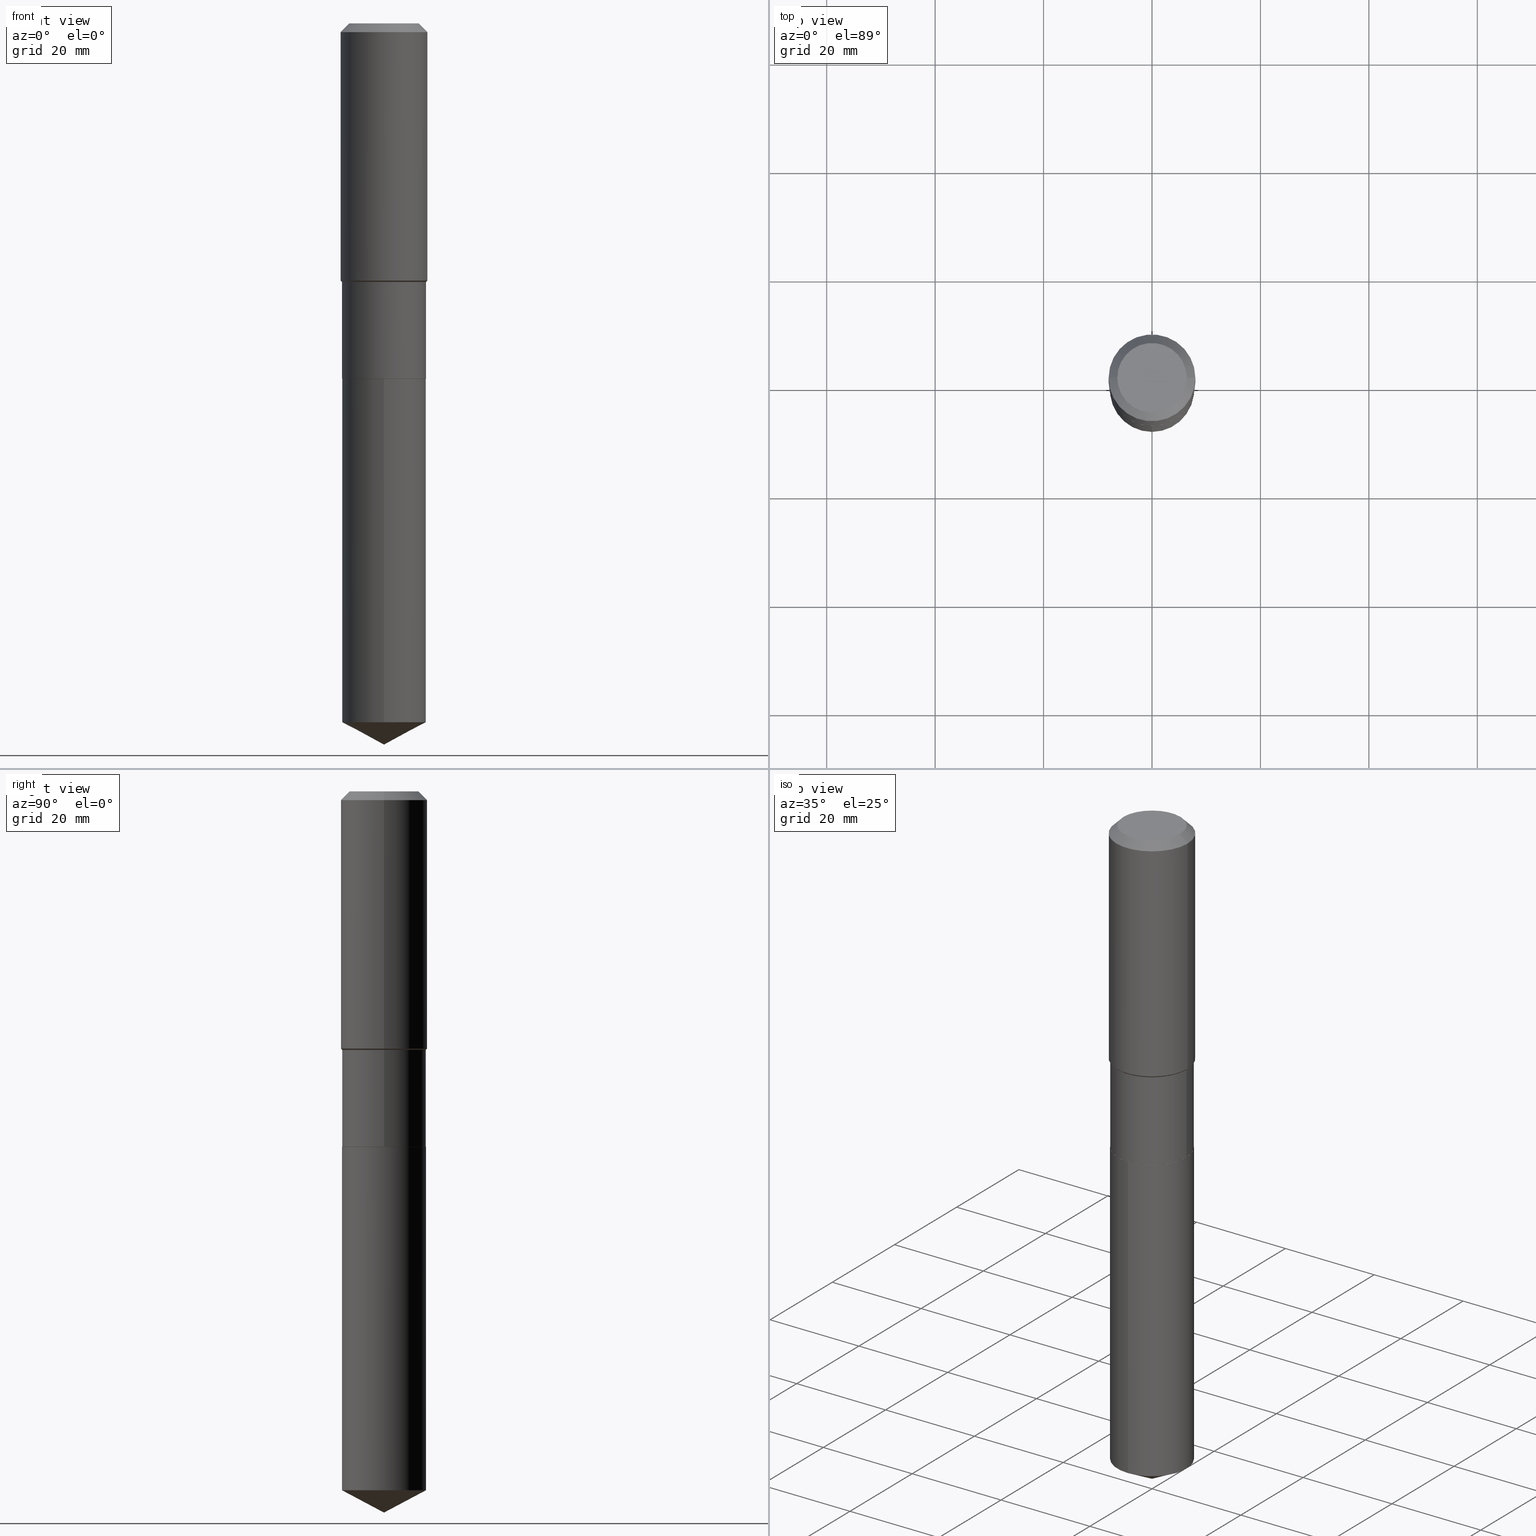
[diagram: canonical four-view strip — front | top / right | iso, engineering-drawing reading convention]
A machine part, canonical four-view strip (front | top / right | iso — engineering-drawing reading convention). The complete STEP part file that produces these views, byte-faithful:
ISO-10303-21;
HEADER;
FILE_DESCRIPTION (( 'STEP AP203' ),
    '1' );
FILE_NAME ('65260.STEP',
    '2024-04-24T22:07:33',
    ( '' ),
    ( '' ),
    'SwSTEP 2.0',
    'SolidWorks 2023',
    '' );
FILE_SCHEMA (( 'CONFIG_CONTROL_DESIGN' ));
ENDSEC;

DATA;
#1 = PLANE ( 'NONE',  #348 ) ;
#2 = ORIENTED_EDGE ( 'NONE', *, *, #379, .F. ) ;
#3 = DIRECTION ( 'NONE',  ( 1.000000000000000000, -6.982962677686269866E-15, 0.000000000000000000 ) ) ;
#4 = CC_DESIGN_DATE_AND_TIME_ASSIGNMENT ( #440, #127, ( #41 ) ) ;
#5 = ORIENTED_EDGE ( 'NONE', *, *, #96, .F. ) ;
#6 = CARTESIAN_POINT ( 'NONE',  ( 6.306130410509611898E-29, -9.003482928474819860E-15, -2.578699999999999992 ) ) ;
#7 = ORIENTED_EDGE ( 'NONE', *, *, #178, .T. ) ;
#8 = DIRECTION ( 'NONE',  ( 1.000000000000000000, -6.982962677686269866E-15, 0.000000000000000000 ) ) ;
#9 = ADVANCED_FACE ( 'NONE', ( #324 ), #347, .T. ) ;
#10 = DIRECTION ( 'NONE',  ( -6.982962677686265133E-15, -1.000000000000000000, 3.581577179500837048E-15 ) ) ;
#11 = CONICAL_SURFACE ( 'NONE', #53, 0.3149500000000000077, 0.7853981633974452814 ) ;
#12 = CARTESIAN_POINT ( 'NONE',  ( 6.304907676106519097E-29, -9.001737187805397567E-15, -2.578199999999999825 ) ) ;
#13 = FACE_OUTER_BOUND ( 'NONE', #62, .T. ) ;
#14 = ORIENTED_EDGE ( 'NONE', *, *, #262, .T. ) ;
#15 = DIRECTION ( 'NONE',  ( 1.000000000000000000, -6.982962677686266711E-15, 0.000000000000000000 ) ) ;
#16 = ADVANCED_BREP_SHAPE_REPRESENTATION ( '65260', ( #431, #260, #411 ), #55 ) ;
#17 = APPROVAL ( #416, 'UNSPECIFIED' ) ;
#18 = DATE_AND_TIME ( #170, #91 ) ;
#19 = CIRCLE ( 'NONE', #136, 0.3149500000000000077 ) ;
#20 = ORIENTED_EDGE ( 'NONE', *, *, #228, .F. ) ;
#21 = PERSON_AND_ORGANIZATION ( #405, #266 ) ;
#22 = ORIENTED_EDGE ( 'NONE', *, *, #408, .F. ) ;
#23 = COORDINATED_UNIVERSAL_TIME_OFFSET ( 5, 0, .BEHIND. ) ;
#24 = DIRECTION ( 'NONE',  ( -2.445468806185136597E-29, 3.491481338843145583E-15, 1.000000000000000000 ) ) ;
#25 = APPROVAL_DATE_TIME ( #18, #274 ) ;
#26 = DIRECTION ( 'NONE',  ( -2.445468806185136597E-29, 3.491481338843145583E-15, 1.000000000000000000 ) ) ;
#27 = AXIS2_PLACEMENT_3D ( 'NONE', #120, #432, #229 ) ;
#28 = CARTESIAN_POINT ( 'NONE',  ( -0.3149500000000000077, 1.979355685803558833E-15, -0.06299000000000036514 ) ) ;
#29 = DIRECTION ( 'NONE',  ( 0.7071067811860163310, -2.468850131076692830E-15, 0.7071067811870787034 ) ) ;
#30 = ORIENTED_EDGE ( 'NONE', *, *, #319, .T. ) ;
#31 = CARTESIAN_POINT ( 'NONE',  ( -0.3149500000000001743, 2.237854346276436774E-15, -1.549218606675783237E-29 ) ) ;
#32 = AXIS2_PLACEMENT_3D ( 'NONE', #244, #361, #292 ) ;
#33 = DIRECTION ( 'NONE',  ( -2.445468806185136597E-29, 3.491481338843145583E-15, 1.000000000000000000 ) ) ;
#34 = EDGE_LOOP ( 'NONE', ( #174, #177 ) ) ;
#35 = CARTESIAN_POINT ( 'NONE',  ( 1.280398962519397944E-28, -1.828348960715673397E-14, -5.236200000000000188 ) ) ;
#36 = ORIENTED_EDGE ( 'NONE', *, *, #191, .T. ) ;
#37 = CARTESIAN_POINT ( 'NONE',  ( -0.3050999999999999268, -4.385644586204520363E-15, -1.877000000000000224 ) ) ;
#38 = VERTEX_POINT ( 'NONE', #367 ) ;
#39 = AXIS2_PLACEMENT_3D ( 'NONE', #314, #357, #155 ) ;
#40 = DIRECTION ( 'NONE',  ( -6.982962677686265133E-15, -1.000000000000000000, 3.581577179500837048E-15 ) ) ;
#41 = PRODUCT_DEFINITION ( 'UNKNOWN', '', #473, #134 ) ;
#42 = DIRECTION ( 'NONE',  ( 1.000000000000000000, -6.982962677686266711E-15, 0.000000000000000000 ) ) ;
#43 = DIRECTION ( 'NONE',  ( -2.445282767120044128E-29, 3.491747757373043881E-15, 1.000000000000000000 ) ) ;
#44 = CIRCLE ( 'NONE', #330, 0.3045999999999999819 ) ;
#45 = LINE ( 'NONE', #349, #337 ) ;
#46 = VERTEX_POINT ( 'NONE', #409 ) ;
#47 = COORDINATED_UNIVERSAL_TIME_OFFSET ( 5, 0, .BEHIND. ) ;
#48 = ADVANCED_FACE ( 'NONE', ( #402 ), #151, .T. ) ;
#49 = EDGE_LOOP ( 'NONE', ( #395, #446, #278, #251 ) ) ;
#50 = CALENDAR_DATE ( 2024, 24, 4 ) ;
#51 = ORIENTED_EDGE ( 'NONE', *, *, #105, .F. ) ;
#52 = CIRCLE ( 'NONE', #420, 0.3050999999999999268 ) ;
#53 = AXIS2_PLACEMENT_3D ( 'NONE', #354, #275, #193 ) ;
#54 = ORIENTED_EDGE ( 'NONE', *, *, #385, .F. ) ;
#55 =( GEOMETRIC_REPRESENTATION_CONTEXT ( 3 ) GLOBAL_UNCERTAINTY_ASSIGNED_CONTEXT ( ( #99 ) ) GLOBAL_UNIT_ASSIGNED_CONTEXT ( ( #208, #401, #240 ) ) REPRESENTATION_CONTEXT ( 'NONE', 'WORKASPACE' ) );
#56 = EDGE_CURVE ( 'NONE', #358, #383, #476, .T. ) ;
#57 = DIRECTION ( 'NONE',  ( 1.000000000000000000, 0.000000000000000000, 0.000000000000000000 ) ) ;
#58 = DIRECTION ( 'NONE',  ( -6.982962677686265922E-15, -1.000000000000000000, 3.541896320645553375E-15 ) ) ;
#59 = CARTESIAN_POINT ( 'NONE',  ( 2.167865886804128256E-15, 0.3050999999999909895, -2.578700000000000880 ) ) ;
#60 = CARTESIAN_POINT ( 'NONE',  ( 1.540400801016026329E-30, -2.199284095337310135E-16, -0.06299000000000036514 ) ) ;
#61 = AXIS2_PLACEMENT_3D ( 'NONE', #60, #214, #380 ) ;
#62 = EDGE_LOOP ( 'NONE', ( #83, #7, #14, #270 ) ) ;
#63 = DIRECTION ( 'NONE',  ( -2.445468806185136597E-29, 3.491481338843145583E-15, 1.000000000000000000 ) ) ;
#64 = CARTESIAN_POINT ( 'NONE',  ( -0.3050999999999999268, 2.167865886804065147E-15, -1.500767096036771338E-29 ) ) ;
#65 = DIRECTION ( 'NONE',  ( -6.982962677686265133E-15, -1.000000000000000000, 3.581577179500837836E-15 ) ) ;
#66 = VECTOR ( 'NONE', #101, 39.37007874015748143 ) ;
#67 = VERTEX_POINT ( 'NONE', #286 ) ;
#68 = CALENDAR_DATE ( 2024, 24, 4 ) ;
#69 = DIRECTION ( 'NONE',  ( -2.445282767120044128E-29, 3.491747757373043881E-15, 1.000000000000000000 ) ) ;
#70 = EDGE_LOOP ( 'NONE', ( #73, #376, #302, #441 ) ) ;
#71 = CARTESIAN_POINT ( 'NONE',  ( 6.306130410509611898E-29, -9.003482928474819860E-15, -2.578699999999999992 ) ) ;
#72 = ADVANCED_FACE ( 'NONE', ( #407 ), #371, .T. ) ;
#73 = ORIENTED_EDGE ( 'NONE', *, *, #447, .T. ) ;
#74 = DIRECTION ( 'NONE',  ( -0.7071067811860163310, 7.493145998868434073E-15, 0.7071067811870787034 ) ) ;
#75 = APPROVAL ( #242, 'UNSPECIFIED' ) ;
#76 = AXIS2_PLACEMENT_3D ( 'NONE', #455, #97, #375 ) ;
#77 = DIRECTION ( 'NONE',  ( 2.445468806185136597E-29, -3.491481338843145583E-15, -1.000000000000000000 ) ) ;
#78 = CARTESIAN_POINT ( 'NONE',  ( 0.2519600000000000173, -2.054606664725195058E-15, 3.855188123729206640E-18 ) ) ;
#79 = CARTESIAN_POINT ( 'NONE',  ( -0.3149500000000002298, -4.281265035544543144E-15, -1.867150000000000087 ) ) ;
#80 = ORIENTED_EDGE ( 'NONE', *, *, #228, .T. ) ;
#81 = CONICAL_SURFACE ( 'NONE', #76, 0.3050999999999999268, 0.7853981633974552734 ) ;
#82 = CC_DESIGN_PERSON_AND_ORGANIZATION_ASSIGNMENT ( #21, #366, ( #163 ) ) ;
#83 = ORIENTED_EDGE ( 'NONE', *, *, #119, .F. ) ;
#84 = APPROVAL_STATUS ( 'not_yet_approved' ) ;
#85 = DIRECTION ( 'NONE',  ( 1.000000000000000000, -6.982962677686266711E-15, 4.876115136096691995E-29 ) ) ;
#86 = VERTEX_POINT ( 'NONE', #327 ) ;
#87 = EDGE_CURVE ( 'NONE', #110, #358, #288, .T. ) ;
#88 = VECTOR ( 'NONE', #200, 39.37007874015748143 ) ;
#89 = CIRCLE ( 'NONE', #378, 0.3050999999999999268 ) ;
#90 = DIRECTION ( 'NONE',  ( -2.445468806185136597E-29, 3.491481338843145583E-15, 1.000000000000000000 ) ) ;
#91 = LOCAL_TIME ( 18, 7, 33.00000000000000000, #210 ) ;
#92 = DIRECTION ( 'NONE',  ( -2.445468806185136597E-29, 3.491481338843145583E-15, 1.000000000000000000 ) ) ;
#93 = SECURITY_CLASSIFICATION_LEVEL ( 'unclassified' ) ;
#94 = CARTESIAN_POINT ( 'NONE',  ( 0.3149500000000000077, -2.380642253931875190E-15, -0.06299000000000036514 ) ) ;
#95 = DIRECTION ( 'NONE',  ( -2.445468806185136597E-29, 3.491481338843145583E-15, 1.000000000000000000 ) ) ;
#96 = EDGE_CURVE ( 'NONE', #295, #202, #108, .T. ) ;
#97 = DIRECTION ( 'NONE',  ( -2.445468806185136597E-29, 3.491481338843145583E-15, 1.000000000000000000 ) ) ;
#98 = CONICAL_SURFACE ( 'NONE', #190, 0.3045999999999999819, 0.7853981633966971021 ) ;
#99 = UNCERTAINTY_MEASURE_WITH_UNIT (LENGTH_MEASURE( 1.000000000000000082E-05 ), #208, 'distance_accuracy_value', 'NONE');
#100 = CC_DESIGN_SECURITY_CLASSIFICATION ( #364, ( #473 ) ) ;
#101 = DIRECTION ( 'NONE',  ( -2.445282767120044128E-29, 3.491747757373043881E-15, 1.000000000000000000 ) ) ;
#102 = EDGE_LOOP ( 'NONE', ( #186, #181, #305, #2 ) ) ;
#103 = APPROVAL_ROLE ( '' ) ;
#104 = CARTESIAN_POINT ( 'NONE',  ( -0.3050999999999999268, -5.609757943602925997E-15, -1.877000000000000224 ) ) ;
#105 = EDGE_CURVE ( 'NONE', #199, #67, #166, .T. ) ;
#106 = ORIENTED_EDGE ( 'NONE', *, *, #406, .T. ) ;
#107 = DIRECTION ( 'NONE',  ( -2.445468806185136597E-29, 3.491481338843145583E-15, 1.000000000000000000 ) ) ;
#108 = CIRCLE ( 'NONE', #196, 0.3050999999999999268 ) ;
#109 = AXIS2_PLACEMENT_3D ( 'NONE', #489, #142, #297 ) ;
#110 = VERTEX_POINT ( 'NONE', #437 ) ;
#111 = LINE ( 'NONE', #226, #183 ) ;
#112 = EDGE_LOOP ( 'NONE', ( #410, #106, #346, #22 ) ) ;
#113 = ADVANCED_FACE ( 'NONE', ( #478 ), #306, .T. ) ;
#114 = CARTESIAN_POINT ( 'NONE',  ( 0.3149500000000001743, -2.199284095337290660E-15, 1.535751875536930690E-29 ) ) ;
#115 = FACE_OUTER_BOUND ( 'NONE', #102, .T. ) ;
#116 = VECTOR ( 'NONE', #467, 39.37007874015748143 ) ;
#117 = APPROVAL_PERSON_ORGANIZATION ( #282, #75, #328 ) ;
#118 = DIRECTION ( 'NONE',  ( 1.000000000000000000, -6.982962677686269077E-15, 0.000000000000000000 ) ) ;
#119 = EDGE_CURVE ( 'NONE', #67, #277, #133, .T. ) ;
#120 = CARTESIAN_POINT ( 'NONE',  ( 0.000000000000000000, 0.000000000000000000, 0.000000000000000000 ) ) ;
#121 = VERTEX_POINT ( 'NONE', #248 ) ;
#122 = CC_DESIGN_DATE_AND_TIME_ASSIGNMENT ( #139, #338, ( #364 ) ) ;
#123 = CYLINDRICAL_SURFACE ( 'NONE', #39, 0.3149500000000001743 ) ;
#124 = ORIENTED_EDGE ( 'NONE', *, *, #243, .F. ) ;
#125 = CIRCLE ( 'NONE', #247, 0.3149500000000002298 ) ;
#126 = CC_DESIGN_APPROVAL ( #17, ( #364 ) ) ;
#127 = DATE_TIME_ROLE ( 'creation_date' ) ;
#128 = DIRECTION ( 'NONE',  ( -2.445282767120044128E-29, 3.491747757373043881E-15, 1.000000000000000000 ) ) ;
#129 = CYLINDRICAL_SURFACE ( 'NONE', #350, 0.3050999999999999268 ) ;
#130 = EDGE_CURVE ( 'NONE', #263, #86, #213, .T. ) ;
#131 = DIRECTION ( 'NONE',  ( -2.438088387897960049E-29, 3.491481338843145188E-15, 1.000000000000000000 ) ) ;
#132 = DIRECTION ( 'NONE',  ( 0.000000000000000000, 0.000000000000000000, 1.000000000000000000 ) ) ;
#133 = LINE ( 'NONE', #59, #456 ) ;
#134 = DESIGN_CONTEXT ( 'detailed design', #474, 'design' ) ;
#135 = AXIS2_PLACEMENT_3D ( 'NONE', #140, #95, #480 ) ;
#136 = AXIS2_PLACEMENT_3D ( 'NONE', #377, #63, #412 ) ;
#137 = PERSON_AND_ORGANIZATION_ROLE ( 'creator' ) ;
#138 = CARTESIAN_POINT ( 'NONE',  ( 4.590144949209502325E-29, -6.553510473008584721E-15, -1.877000000000000224 ) ) ;
#139 = DATE_AND_TIME ( #68, #233 ) ;
#140 = CARTESIAN_POINT ( 'NONE',  ( 4.590144949209502325E-29, -6.553510473008584721E-15, -1.877000000000000224 ) ) ;
#141 = ADVANCED_FACE ( 'NONE', ( #250 ), #283, .F. ) ;
#142 = DIRECTION ( 'NONE',  ( 2.445282767120043848E-29, -3.491747757373043881E-15, -1.000000000000000000 ) ) ;
#143 = LINE ( 'NONE', #28, #289 ) ;
#144 = VECTOR ( 'NONE', #485, 39.37007874015748143 ) ;
#145 = EDGE_CURVE ( 'NONE', #358, #110, #307, .T. ) ;
#146 = FACE_OUTER_BOUND ( 'NONE', #112, .T. ) ;
#147 = EDGE_LOOP ( 'NONE', ( #484, #318, #188 ) ) ;
#148 = CARTESIAN_POINT ( 'NONE',  ( 2.167865886804189787E-15, 0.3050999999999909895, -2.578700000000000880 ) ) ;
#149 = ORIENTED_EDGE ( 'NONE', *, *, #461, .F. ) ;
#150 = CARTESIAN_POINT ( 'NONE',  ( 4.566057081468578396E-29, -6.519119381820979918E-15, -1.867150000000000087 ) ) ;
#151 = CONICAL_SURFACE ( 'NONE', #482, 74.04434902938369589, 1.082104136236487379 ) ;
#152 = AXIS2_PLACEMENT_3D ( 'NONE', #246, #335, #256 ) ;
#153 = LOCAL_TIME ( 18, 7, 33.00000000000000000, #23 ) ;
#154 = ORIENTED_EDGE ( 'NONE', *, *, #262, .F. ) ;
#155 = DIRECTION ( 'NONE',  ( 1.000000000000000000, -6.982962677686265922E-15, 4.876176775795935232E-29 ) ) ;
#156 = ORIENTED_EDGE ( 'NONE', *, *, #130, .T. ) ;
#157 = EDGE_CURVE ( 'NONE', #294, #340, #125, .T. ) ;
#158 = DIRECTION ( 'NONE',  ( -2.445282767120044128E-29, 3.491747757373043881E-15, 1.000000000000000000 ) ) ;
#159 = CARTESIAN_POINT ( 'NONE',  ( 6.306130410509611898E-29, -9.003482928474819860E-15, -2.578699999999999992 ) ) ;
#160 = CLOSED_SHELL ( 'NONE', ( #215, #356, #365, #203, #466, #72, #9, #326, #450, #296, #141, #316 ) ) ;
#161 = CYLINDRICAL_SURFACE ( 'NONE', #27, 0.3149500000000001743 ) ;
#162 = EDGE_CURVE ( 'NONE', #383, #121, #19, .T. ) ;
#163 = PRODUCT ( '65260', '65260', '', ( #206 ) ) ;
#164 = FACE_OUTER_BOUND ( 'NONE', #422, .T. ) ;
#165 = ORIENTED_EDGE ( 'NONE', *, *, #408, .T. ) ;
#166 = LINE ( 'NONE', #321, #392 ) ;
#167 = AXIS2_PLACEMENT_3D ( 'NONE', #150, #261, #180 ) ;
#168 = APPLICATION_PROTOCOL_DEFINITION ( 'international standard', 'config_control_design', 1994, #224 ) ;
#169 = CARTESIAN_POINT ( 'NONE',  ( 3.076170230057308953E-29, -1.362896974479920444E-14, -2.578700000000000436 ) ) ;
#170 = CALENDAR_DATE ( 2024, 24, 4 ) ;
#171 = DIRECTION ( 'NONE',  ( 1.000000000000000000, -6.982962677686265133E-15, 4.876176775795935793E-29 ) ) ;
#172 = PRODUCT_DEFINITION_SHAPE ( 'NONE', 'NONE',  #41 ) ;
#173 = APPROVAL_DATE_TIME ( #201, #75 ) ;
#174 = ORIENTED_EDGE ( 'NONE', *, *, #385, .T. ) ;
#175 = AXIS2_PLACEMENT_3D ( 'NONE', #469, #317, #423 ) ;
#176 = CARTESIAN_POINT ( 'NONE',  ( 6.306130410509613019E-29, -9.003482928474821437E-15, -2.578700000000000436 ) ) ;
#177 = ORIENTED_EDGE ( 'NONE', *, *, #341, .T. ) ;
#178 = EDGE_CURVE ( 'NONE', #67, #468, #52, .T. ) ;
#179 = LINE ( 'NONE', #451, #66 ) ;
#180 = DIRECTION ( 'NONE',  ( 1.000000000000000000, -6.982962677686268288E-15, 0.000000000000000000 ) ) ;
#181 = ORIENTED_EDGE ( 'NONE', *, *, #268, .T. ) ;
#182 = EDGE_CURVE ( 'NONE', #263, #295, #258, .T. ) ;
#183 = VECTOR ( 'NONE', #29, 39.37007874015748143 ) ;
#184 = FACE_OUTER_BOUND ( 'NONE', #34, .T. ) ;
#185 = FACE_OUTER_BOUND ( 'NONE', #386, .T. ) ;
#186 = ORIENTED_EDGE ( 'NONE', *, *, #157, .T. ) ;
#187 = DIRECTION ( 'NONE',  ( -2.445468806185136597E-29, 3.491481338843145583E-15, 1.000000000000000000 ) ) ;
#188 = ORIENTED_EDGE ( 'NONE', *, *, #319, .F. ) ;
#189 = FACE_OUTER_BOUND ( 'NONE', #309, .T. ) ;
#190 = AXIS2_PLACEMENT_3D ( 'NONE', #355, #428, #8 ) ;
#191 = EDGE_CURVE ( 'NONE', #199, #468, #223, .T. ) ;
#192 = ORIENTED_EDGE ( 'NONE', *, *, #415, .T. ) ;
#193 = DIRECTION ( 'NONE',  ( -1.000000000000000000, 6.982962677686266711E-15, 0.000000000000000000 ) ) ;
#194 = DIRECTION ( 'NONE',  ( -0.7071067811865524577, 7.493145998870371515E-15, 0.7071067811865425767 ) ) ;
#195 = DIRECTION ( 'NONE',  ( -2.445282767120044128E-29, 3.491747757373043881E-15, 1.000000000000000000 ) ) ;
#196 = AXIS2_PLACEMENT_3D ( 'NONE', #138, #24, #15 ) ;
#197 = VECTOR ( 'NONE', #417, 39.37007874015748143 ) ;
#198 = DIRECTION ( 'NONE',  ( -1.000000000000000000, 6.982962677686266711E-15, 0.000000000000000000 ) ) ;
#199 = VERTEX_POINT ( 'NONE', #486 ) ;
#200 = DIRECTION ( 'NONE',  ( 0.7071067811865453523, -7.319954787623248157E-15, -0.7071067811865496822 ) ) ;
#201 = DATE_AND_TIME ( #50, #153 ) ;
#202 = VERTEX_POINT ( 'NONE', #373 ) ;
#203 = ADVANCED_FACE ( 'NONE', ( #146 ), #81, .T. ) ;
#204 = AXIS2_PLACEMENT_3D ( 'NONE', #404, #369, #284 ) ;
#205 = APPROVAL_PERSON_ORGANIZATION ( #399, #274, #368 ) ;
#206 = MECHANICAL_CONTEXT ( 'NONE', #224, 'mechanical' ) ;
#207 = ORIENTED_EDGE ( 'NONE', *, *, #255, .F. ) ;
#208 =( CONVERSION_BASED_UNIT ( 'INCH', #434 ) LENGTH_UNIT ( ) NAMED_UNIT ( #245 ) );
#209 = CARTESIAN_POINT ( 'NONE',  ( 0.000000000000000000, 0.000000000000000000, 0.000000000000000000 ) ) ;
#210 = COORDINATED_UNIVERSAL_TIME_OFFSET ( 5, 0, .BEHIND. ) ;
#211 = CARTESIAN_POINT ( 'NONE',  ( -8.346650571933516159E-28, 1.191875815548513333E-13, 34.13387874015747769 ) ) ;
#212 = AXIS2_PLACEMENT_3D ( 'NONE', #359, #26, #85 ) ;
#213 = CIRCLE ( 'NONE', #204, 0.3050999999999999268 ) ;
#214 = DIRECTION ( 'NONE',  ( -2.445468806185136597E-29, 3.491481338843145583E-15, 1.000000000000000000 ) ) ;
#215 = ADVANCED_FACE ( 'NONE', ( #217 ), #363, .T. ) ;
#216 = DATE_AND_TIME ( #259, #396 ) ;
#217 = FACE_OUTER_BOUND ( 'NONE', #374, .T. ) ;
#218 = EDGE_CURVE ( 'NONE', #46, #86, #111, .T. ) ;
#219 = APPROVAL_DATE_TIME ( #216, #17 ) ;
#220 = DIRECTION ( 'NONE',  ( -2.445468806185136597E-29, 3.491481338843145583E-15, 1.000000000000000000 ) ) ;
#221 = ORIENTED_EDGE ( 'NONE', *, *, #268, .F. ) ;
#222 = CIRCLE ( 'NONE', #280, 0.3045999999999999819 ) ;
#223 = LINE ( 'NONE', #35, #313 ) ;
#224 = APPLICATION_CONTEXT ( 'configuration controlled 3d designs of mechanical parts and assemblies' ) ;
#225 = ORIENTED_EDGE ( 'NONE', *, *, #145, .T. ) ;
#226 = CARTESIAN_POINT ( 'NONE',  ( 0.3045999999999999819, -1.113049336009805869E-14, -2.578700000000000436 ) ) ;
#227 = ORIENTED_EDGE ( 'NONE', *, *, #235, .T. ) ;
#228 = EDGE_CURVE ( 'NONE', #340, #294, #264, .T. ) ;
#229 = DIRECTION ( 'NONE',  ( 1.000000000000000000, -6.982962677686265922E-15, 4.876176775795935232E-29 ) ) ;
#230 = ORIENTED_EDGE ( 'NONE', *, *, #119, .T. ) ;
#231 = LINE ( 'NONE', #114, #464 ) ;
#232 = AXIS2_PLACEMENT_3D ( 'NONE', #459, #107, #3 ) ;
#233 = LOCAL_TIME ( 18, 7, 33.00000000000000000, #334 ) ;
#234 = CARTESIAN_POINT ( 'NONE',  ( 6.306130410509611898E-29, -9.003482928474819860E-15, -2.578699999999999992 ) ) ;
#235 = EDGE_CURVE ( 'NONE', #38, #46, #44, .T. ) ;
#236 = CYLINDRICAL_SURFACE ( 'NONE', #322, 0.3050999999999999823 ) ;
#237 = DIRECTION ( 'NONE',  ( -2.445468806185136877E-29, 3.491481338843145188E-15, 1.000000000000000000 ) ) ;
#238 = ORIENTED_EDGE ( 'NONE', *, *, #430, .F. ) ;
#239 = CONICAL_SURFACE ( 'NONE', #435, 0.3149500000000000077, 0.7853981633974452814 ) ;
#240 =( NAMED_UNIT ( * ) SI_UNIT ( $, .STERADIAN. ) SOLID_ANGLE_UNIT ( ) );
#241 = EDGE_LOOP ( 'NONE', ( #238, #227, #343, #329 ) ) ;
#242 = APPROVAL_STATUS ( 'not_yet_approved' ) ;
#243 = EDGE_CURVE ( 'NONE', #110, #121, #143, .T. ) ;
#244 = CARTESIAN_POINT ( 'NONE',  ( -8.346650571933516159E-28, 1.191875815548513333E-13, 34.13387874015747769 ) ) ;
#245 = DIMENSIONAL_EXPONENTS ( 1.000000000000000000, 0.000000000000000000, 0.000000000000000000, 0.000000000000000000, 0.000000000000000000, 0.000000000000000000, 0.000000000000000000 ) ;
#246 = CARTESIAN_POINT ( 'NONE',  ( -9.427742298522569579E-47, 1.346031739168368629E-32, 3.855188123715871501E-18 ) ) ;
#247 = AXIS2_PLACEMENT_3D ( 'NONE', #414, #220, #453 ) ;
#248 = CARTESIAN_POINT ( 'NONE',  ( -0.3149500000000000077, -1.131669549400918704E-15, -0.06299000000000036514 ) ) ;
#249 = PERSON_AND_ORGANIZATION_ROLE ( 'creator' ) ;
#250 = FACE_OUTER_BOUND ( 'NONE', #400, .T. ) ;
#251 = ORIENTED_EDGE ( 'NONE', *, *, #255, .T. ) ;
#252 = CIRCLE ( 'NONE', #175, 0.3050999999999999268 ) ;
#253 = PERSON_AND_ORGANIZATION ( #405, #266 ) ;
#254 = APPROVAL_PERSON_ORGANIZATION ( #253, #17, #103 ) ;
#255 = EDGE_CURVE ( 'NONE', #121, #383, #471, .T. ) ;
#256 = DIRECTION ( 'NONE',  ( 1.000000000000000000, -6.982962677686266711E-15, 4.876115136096691995E-29 ) ) ;
#257 = ORIENTED_EDGE ( 'NONE', *, *, #162, .T. ) ;
#258 = LINE ( 'NONE', #64, #197 ) ;
#259 = CALENDAR_DATE ( 2024, 24, 4 ) ;
#260 = MANIFOLD_SOLID_BREP ( 'Body-Move/Copy2[2]', #160 ) ;
#261 = DIRECTION ( 'NONE',  ( -2.445468806185136597E-29, 3.491481338843145583E-15, 1.000000000000000000 ) ) ;
#262 = EDGE_CURVE ( 'NONE', #468, #419, #179, .T. ) ;
#263 = VERTEX_POINT ( 'NONE', #333 ) ;
#264 = CIRCLE ( 'NONE', #167, 0.3149500000000002298 ) ;
#265 = LINE ( 'NONE', #31, #144 ) ;
#266 = ORGANIZATION ( 'UNSPECIFIED', 'UNSPECIFIED', '' ) ;
#267 = ORIENTED_EDGE ( 'NONE', *, *, #178, .F. ) ;
#268 = EDGE_CURVE ( 'NONE', #340, #121, #265, .T. ) ;
#269 = DIRECTION ( 'NONE',  ( 1.000000000000000000, -6.982962677686269866E-15, 0.000000000000000000 ) ) ;
#270 = ORIENTED_EDGE ( 'NONE', *, *, #341, .F. ) ;
#271 = CARTESIAN_POINT ( 'NONE',  ( -2.130501912962016366E-15, -0.3051000000000089751, -2.578699999999999104 ) ) ;
#272 = FACE_OUTER_BOUND ( 'NONE', #424, .T. ) ;
#273 = VECTOR ( 'NONE', #194, 39.37007874015748143 ) ;
#274 = APPROVAL ( #84, 'UNSPECIFIED' ) ;
#275 = DIRECTION ( 'NONE',  ( 2.445468806185136597E-29, -3.491481338843145583E-15, -1.000000000000000000 ) ) ;
#276 = DIRECTION ( 'NONE',  ( -2.445468806185136597E-29, 3.491481338843145583E-15, 1.000000000000000000 ) ) ;
#277 = VERTEX_POINT ( 'NONE', #148 ) ;
#278 = ORIENTED_EDGE ( 'NONE', *, *, #243, .T. ) ;
#279 = AXIS2_PLACEMENT_3D ( 'NONE', #169, #131, #439 ) ;
#280 = AXIS2_PLACEMENT_3D ( 'NONE', #176, #370, #477 ) ;
#281 = CC_DESIGN_PERSON_AND_ORGANIZATION_ASSIGNMENT ( #344, #452, ( #364 ) ) ;
#282 = PERSON_AND_ORGANIZATION ( #405, #266 ) ;
#283 = PLANE ( 'NONE',  #279 ) ;
#284 = DIRECTION ( 'NONE',  ( 1.000000000000000000, -6.982962677686269077E-15, 0.000000000000000000 ) ) ;
#285 = DIRECTION ( 'NONE',  ( 1.000000000000000000, -6.982962677686265133E-15, 4.876176775795935793E-29 ) ) ;
#286 = CARTESIAN_POINT ( 'NONE',  ( 2.167865886804188604E-15, 0.3050999999999821632, -5.073975452400085295 ) ) ;
#287 = ADVANCED_FACE ( 'NONE', ( #184 ), #339, .F. ) ;
#288 = CIRCLE ( 'NONE', #212, 0.2519600000000000173 ) ;
#289 = VECTOR ( 'NONE', #342, 39.37007874015748143 ) ;
#290 = CC_DESIGN_APPROVAL ( #274, ( #41 ) ) ;
#291 = PERSON_AND_ORGANIZATION ( #405, #266 ) ;
#292 = DIRECTION ( 'NONE',  ( -6.982962677686265922E-15, -1.000000000000000000, 3.541896320645553375E-15 ) ) ;
#293 = COORDINATED_UNIVERSAL_TIME_OFFSET ( 5, 0, .BEHIND. ) ;
#294 = VERTEX_POINT ( 'NONE', #301 ) ;
#295 = VERTEX_POINT ( 'NONE', #104 ) ;
#296 = ADVANCED_FACE ( 'NONE', ( #185 ), #1, .F. ) ;
#297 = DIRECTION ( 'NONE',  ( 6.982962677686265922E-15, 1.000000000000000000, -3.491747757373043881E-15 ) ) ;
#298 = EDGE_CURVE ( 'NONE', #202, #295, #394, .T. ) ;
#299 = CARTESIAN_POINT ( 'NONE',  ( 1.240778447348120956E-28, -1.771635539342082338E-14, -5.073975452400084407 ) ) ;
#300 = ORIENTED_EDGE ( 'NONE', *, *, #461, .T. ) ;
#301 = CARTESIAN_POINT ( 'NONE',  ( 0.3149500000000002298, -8.718403477158270577E-15, -1.867150000000000087 ) ) ;
#302 = ORIENTED_EDGE ( 'NONE', *, *, #298, .F. ) ;
#303 = DIRECTION ( 'NONE',  ( 2.438088387897960049E-29, -3.491481338843145188E-15, -1.000000000000000000 ) ) ;
#304 = CC_DESIGN_PERSON_AND_ORGANIZATION_ASSIGNMENT ( #291, #443, ( #473 ) ) ;
#305 = ORIENTED_EDGE ( 'NONE', *, *, #162, .F. ) ;
#306 = CONICAL_SURFACE ( 'NONE', #32, 74.04434902938369589, 1.082104136236487379 ) ;
#307 = CIRCLE ( 'NONE', #152, 0.2519600000000000173 ) ;
#308 = CARTESIAN_POINT ( 'NONE',  ( 6.306130410509613019E-29, -9.003482928474821437E-15, -2.578700000000000436 ) ) ;
#309 = EDGE_LOOP ( 'NONE', ( #221, #80, #470, #207 ) ) ;
#310 = LINE ( 'NONE', #462, #116 ) ;
#311 = CARTESIAN_POINT ( 'NONE',  ( 1.540400801016026329E-30, -2.199284095337310135E-16, -0.06299000000000036514 ) ) ;
#312 = DIRECTION ( 'NONE',  ( -6.982962677686265133E-15, -1.000000000000000000, 3.581577179500837048E-15 ) ) ;
#313 = VECTOR ( 'NONE', #448, 39.37007874015747433 ) ;
#314 = CARTESIAN_POINT ( 'NONE',  ( 0.000000000000000000, 0.000000000000000000, 0.000000000000000000 ) ) ;
#315 = EDGE_LOOP ( 'NONE', ( #398, #460, #165, #20 ) ) ;
#316 = ADVANCED_FACE ( 'NONE', ( #463 ), #98, .T. ) ;
#317 = DIRECTION ( 'NONE',  ( -2.445282767120044128E-29, 3.491747757373043881E-15, 1.000000000000000000 ) ) ;
#318 = ORIENTED_EDGE ( 'NONE', *, *, #105, .T. ) ;
#319 = EDGE_CURVE ( 'NONE', #468, #67, #252, .T. ) ;
#320 = PERSON_AND_ORGANIZATION ( #405, #266 ) ;
#321 = CARTESIAN_POINT ( 'NONE',  ( 1.280495751655667131E-28, -1.828211558023063745E-14, -5.236200000000000188 ) ) ;
#322 = AXIS2_PLACEMENT_3D ( 'NONE', #71, #43, #10 ) ;
#323 = CALENDAR_DATE ( 2024, 24, 4 ) ;
#324 = FACE_OUTER_BOUND ( 'NONE', #315, .T. ) ;
#325 = CARTESIAN_POINT ( 'NONE',  ( 0.000000000000000000, 0.000000000000000000, 0.000000000000000000 ) ) ;
#326 = ADVANCED_FACE ( 'NONE', ( #189 ), #123, .T. ) ;
#327 = CARTESIAN_POINT ( 'NONE',  ( 0.3050999999999999268, -1.113223910076747783E-14, -2.578199999999999825 ) ) ;
#328 = APPROVAL_ROLE ( '' ) ;
#329 = ORIENTED_EDGE ( 'NONE', *, *, #130, .F. ) ;
#330 = AXIS2_PLACEMENT_3D ( 'NONE', #308, #33, #269 ) ;
#331 = FACE_OUTER_BOUND ( 'NONE', #70, .T. ) ;
#332 = ORIENTED_EDGE ( 'NONE', *, *, #87, .T. ) ;
#333 = CARTESIAN_POINT ( 'NONE',  ( -0.3050999999999999823, -5.609757943602925208E-15, -2.578199999999999825 ) ) ;
#334 = COORDINATED_UNIVERSAL_TIME_OFFSET ( 5, 0, .BEHIND. ) ;
#335 = DIRECTION ( 'NONE',  ( -2.445468806185136597E-29, 3.491481338843145583E-15, 1.000000000000000000 ) ) ;
#336 = ORIENTED_EDGE ( 'NONE', *, *, #430, .T. ) ;
#337 = VECTOR ( 'NONE', #353, 39.37007874015748143 ) ;
#338 = DATE_TIME_ROLE ( 'classification_date' ) ;
#339 = PLANE ( 'NONE',  #109 ) ;
#340 = VERTEX_POINT ( 'NONE', #79 ) ;
#341 = EDGE_CURVE ( 'NONE', #277, #419, #458, .T. ) ;
#342 = DIRECTION ( 'NONE',  ( -0.7071067811865453523, 2.468850131082234184E-15, -0.7071067811865496822 ) ) ;
#343 = ORIENTED_EDGE ( 'NONE', *, *, #218, .T. ) ;
#344 = PERSON_AND_ORGANIZATION ( #405, #266 ) ;
#345 = CARTESIAN_POINT ( 'NONE',  ( -4.713871149261284790E-47, 6.730158695841843144E-33, 1.927594061857935750E-18 ) ) ;
#346 = ORIENTED_EDGE ( 'NONE', *, *, #157, .F. ) ;
#347 = CONICAL_SURFACE ( 'NONE', #135, 0.3050999999999999268, 0.7853981633974552734 ) ;
#348 = AXIS2_PLACEMENT_3D ( 'NONE', #345, #303, #421 ) ;
#349 = CARTESIAN_POINT ( 'NONE',  ( 0.3050999999999999268, -8.684012385970664985E-15, -1.877000000000000224 ) ) ;
#350 = AXIS2_PLACEMENT_3D ( 'NONE', #475, #90, #285 ) ;
#351 = ADVANCED_FACE ( 'NONE', ( #13 ), #236, .T. ) ;
#352 = EDGE_LOOP ( 'NONE', ( #51, #36, #267 ) ) ;
#353 = DIRECTION ( 'NONE',  ( 0.7071067811865524577, -2.468850131082308731E-15, 0.7071067811865425767 ) ) ;
#354 = CARTESIAN_POINT ( 'NONE',  ( 1.540400801016026329E-30, -2.199284095337310135E-16, -0.06299000000000036514 ) ) ;
#355 = CARTESIAN_POINT ( 'NONE',  ( 6.306130410509613019E-29, -9.003482928474821437E-15, -2.578700000000000436 ) ) ;
#356 = ADVANCED_FACE ( 'NONE', ( #272 ), #239, .T. ) ;
#357 = DIRECTION ( 'NONE',  ( -2.445468806185136597E-29, 3.491481338843145583E-15, 1.000000000000000000 ) ) ;
#358 = VERTEX_POINT ( 'NONE', #78 ) ;
#359 = CARTESIAN_POINT ( 'NONE',  ( -9.427742298522569579E-47, 1.346031739168368629E-32, 3.855188123715871501E-18 ) ) ;
#360 = ADVANCED_FACE ( 'NONE', ( #164 ), #390, .T. ) ;
#361 = DIRECTION ( 'NONE',  ( -2.445282767120044128E-29, 3.491747757373043881E-15, 1.000000000000000000 ) ) ;
#362 = CLOSED_SHELL ( 'NONE', ( #360, #113, #48, #351, #287 ) ) ;
#363 = CONICAL_SURFACE ( 'NONE', #232, 0.3045999999999999819, 0.7853981633966971021 ) ;
#364 = SECURITY_CLASSIFICATION ( '', '', #93 ) ;
#365 = ADVANCED_FACE ( 'NONE', ( #115 ), #161, .T. ) ;
#366 = PERSON_AND_ORGANIZATION_ROLE ( 'design_owner' ) ;
#367 = CARTESIAN_POINT ( 'NONE',  ( -0.3045999999999999819, -6.836520528175443621E-15, -2.578700000000000436 ) ) ;
#368 = APPROVAL_ROLE ( '' ) ;
#369 = DIRECTION ( 'NONE',  ( -2.445468806185136597E-29, 3.491481338843145583E-15, 1.000000000000000000 ) ) ;
#370 = DIRECTION ( 'NONE',  ( -2.445468806185136597E-29, 3.491481338843145583E-15, 1.000000000000000000 ) ) ;
#371 = CYLINDRICAL_SURFACE ( 'NONE', #418, 0.3050999999999999268 ) ;
#372 = CC_DESIGN_APPROVAL ( #75, ( #473 ) ) ;
#373 = CARTESIAN_POINT ( 'NONE',  ( 0.3050999999999999268, -8.684012385970664985E-15, -1.877000000000000224 ) ) ;
#374 = EDGE_LOOP ( 'NONE', ( #300, #336, #381, #436 ) ) ;
#375 = DIRECTION ( 'NONE',  ( 1.000000000000000000, -6.982962677686266711E-15, 0.000000000000000000 ) ) ;
#376 = ORIENTED_EDGE ( 'NONE', *, *, #182, .T. ) ;
#377 = CARTESIAN_POINT ( 'NONE',  ( 1.540400801016026329E-30, -2.199284095337310135E-16, -0.06299000000000036514 ) ) ;
#378 = AXIS2_PLACEMENT_3D ( 'NONE', #12, #276, #118 ) ;
#379 = EDGE_CURVE ( 'NONE', #294, #383, #231, .T. ) ;
#380 = DIRECTION ( 'NONE',  ( 1.000000000000000000, -6.982962677686266711E-15, 0.000000000000000000 ) ) ;
#381 = ORIENTED_EDGE ( 'NONE', *, *, #447, .F. ) ;
#382 = CARTESIAN_POINT ( 'NONE',  ( 4.590144949209502325E-29, -6.553510473008584721E-15, -1.877000000000000224 ) ) ;
#383 = VERTEX_POINT ( 'NONE', #393 ) ;
#384 = DIRECTION ( 'NONE',  ( -6.982962677686265133E-15, -1.000000000000000000, 3.581577179500837048E-15 ) ) ;
#385 = EDGE_CURVE ( 'NONE', #419, #277, #387, .T. ) ;
#386 = EDGE_LOOP ( 'NONE', ( #332, #225 ) ) ;
#387 = CIRCLE ( 'NONE', #427, 0.3050999999999999823 ) ;
#388 = FACE_OUTER_BOUND ( 'NONE', #49, .T. ) ;
#389 = LINE ( 'NONE', #37, #273 ) ;
#390 = CYLINDRICAL_SURFACE ( 'NONE', #487, 0.3050999999999999823 ) ;
#391 = CC_DESIGN_PERSON_AND_ORGANIZATION_ASSIGNMENT ( #479, #137, ( #473 ) ) ;
#392 = VECTOR ( 'NONE', #444, 39.37007874015748854 ) ;
#393 = CARTESIAN_POINT ( 'NONE',  ( 0.3149500000000000077, -2.419212504871020909E-15, -0.06299000000000036514 ) ) ;
#394 = CIRCLE ( 'NONE', #449, 0.3050999999999999268 ) ;
#395 = ORIENTED_EDGE ( 'NONE', *, *, #56, .F. ) ;
#396 = LOCAL_TIME ( 18, 7, 33.00000000000000000, #293 ) ;
#397 = APPLICATION_PROTOCOL_DEFINITION ( 'international standard', 'config_control_design', 1994, #474 ) ;
#398 = ORIENTED_EDGE ( 'NONE', *, *, #406, .F. ) ;
#399 = PERSON_AND_ORGANIZATION ( #405, #266 ) ;
#400 = EDGE_LOOP ( 'NONE', ( #149, #433 ) ) ;
#401 =( NAMED_UNIT ( * ) PLANE_ANGLE_UNIT ( ) SI_UNIT ( $, .RADIAN. ) );
#402 = FACE_OUTER_BOUND ( 'NONE', #352, .T. ) ;
#403 = VECTOR ( 'NONE', #74, 39.37007874015748143 ) ;
#404 = CARTESIAN_POINT ( 'NONE',  ( 6.304907676106519097E-29, -9.001737187805397567E-15, -2.578199999999999825 ) ) ;
#405 = PERSON ( 'UNSPECIFIED', 'UNSPECIFIED', 'UNSPECIFIED', ('UNSPECIFIED'), ('UNSPECIFIED'), ('UNSPECIFIED') ) ;
#406 = EDGE_CURVE ( 'NONE', #295, #340, #389, .T. ) ;
#407 = FACE_OUTER_BOUND ( 'NONE', #413, .T. ) ;
#408 = EDGE_CURVE ( 'NONE', #202, #294, #45, .T. ) ;
#409 = CARTESIAN_POINT ( 'NONE',  ( 0.3045999999999999819, -1.113049336009805869E-14, -2.578700000000000436 ) ) ;
#410 = ORIENTED_EDGE ( 'NONE', *, *, #298, .T. ) ;
#411 = AXIS2_PLACEMENT_3D ( 'NONE', #325, #132, #57 ) ;
#412 = DIRECTION ( 'NONE',  ( 1.000000000000000000, -6.982962677686266711E-15, 0.000000000000000000 ) ) ;
#413 = EDGE_LOOP ( 'NONE', ( #457, #156, #192, #5 ) ) ;
#414 = CARTESIAN_POINT ( 'NONE',  ( 4.566057081468578396E-29, -6.519119381820979918E-15, -1.867150000000000087 ) ) ;
#415 = EDGE_CURVE ( 'NONE', #86, #202, #310, .T. ) ;
#416 = APPROVAL_STATUS ( 'not_yet_approved' ) ;
#417 = DIRECTION ( 'NONE',  ( -2.445468806185136877E-29, 3.491481338843145188E-15, 1.000000000000000000 ) ) ;
#418 = AXIS2_PLACEMENT_3D ( 'NONE', #209, #92, #171 ) ;
#419 = VERTEX_POINT ( 'NONE', #271 ) ;
#420 = AXIS2_PLACEMENT_3D ( 'NONE', #299, #69, #65 ) ;
#421 = DIRECTION ( 'NONE',  ( -1.000000000000000000, 6.982962677686265922E-15, -4.876176775795935793E-29 ) ) ;
#422 = EDGE_LOOP ( 'NONE', ( #30, #230, #54, #154 ) ) ;
#423 = DIRECTION ( 'NONE',  ( -6.982962677686265133E-15, -1.000000000000000000, 3.581577179500837836E-15 ) ) ;
#424 = EDGE_LOOP ( 'NONE', ( #454, #490, #257, #124 ) ) ;
#425 = PRODUCT_RELATED_PRODUCT_CATEGORY ( 'detail', '', ( #163 ) ) ;
#426 = LINE ( 'NONE', #429, #403 ) ;
#427 = AXIS2_PLACEMENT_3D ( 'NONE', #234, #465, #384 ) ;
#428 = DIRECTION ( 'NONE',  ( -2.445468806185136597E-29, 3.491481338843145583E-15, 1.000000000000000000 ) ) ;
#429 = CARTESIAN_POINT ( 'NONE',  ( -0.3045999999999999819, -6.839169755349556400E-15, -2.578700000000000436 ) ) ;
#430 = EDGE_CURVE ( 'NONE', #38, #263, #426, .T. ) ;
#431 = MANIFOLD_SOLID_BREP ( 'Body-Move/Copy2[1]', #362 ) ;
#432 = DIRECTION ( 'NONE',  ( -2.445468806185136597E-29, 3.491481338843145583E-15, 1.000000000000000000 ) ) ;
#433 = ORIENTED_EDGE ( 'NONE', *, *, #235, .F. ) ;
#434 = LENGTH_MEASURE_WITH_UNIT ( LENGTH_MEASURE( 0.02539999999999999897 ), #438 );
#435 = AXIS2_PLACEMENT_3D ( 'NONE', #311, #77, #198 ) ;
#436 = ORIENTED_EDGE ( 'NONE', *, *, #218, .F. ) ;
#437 = CARTESIAN_POINT ( 'NONE',  ( -0.2519600000000000173, 1.869391481036695286E-15, 3.855188123703182704E-18 ) ) ;
#438 =( LENGTH_UNIT ( ) NAMED_UNIT ( * ) SI_UNIT ( $, .METRE. ) );
#439 = DIRECTION ( 'NONE',  ( 1.000000000000000000, -6.982962677686265922E-15, 4.876176775795935793E-29 ) ) ;
#440 = DATE_AND_TIME ( #323, #442 ) ;
#441 = ORIENTED_EDGE ( 'NONE', *, *, #415, .F. ) ;
#442 = LOCAL_TIME ( 18, 7, 33.00000000000000000, #47 ) ;
#443 = PERSON_AND_ORGANIZATION_ROLE ( 'design_supplier' ) ;
#444 = DIRECTION ( 'NONE',  ( 6.273719981627766076E-15, 0.8829475928589298750, 0.4694715627858848661 ) ) ;
#445 = SHAPE_DEFINITION_REPRESENTATION ( #172, #16 ) ;
#446 = ORIENTED_EDGE ( 'NONE', *, *, #87, .F. ) ;
#447 = EDGE_CURVE ( 'NONE', #86, #263, #89, .T. ) ;
#448 = DIRECTION ( 'NONE',  ( -6.165590087286837607E-15, -0.8829475928589267664, 0.4694715627858912499 ) ) ;
#449 = AXIS2_PLACEMENT_3D ( 'NONE', #382, #187, #42 ) ;
#450 = ADVANCED_FACE ( 'NONE', ( #388 ), #11, .T. ) ;
#451 = CARTESIAN_POINT ( 'NONE',  ( -2.130501912962016366E-15, -0.3051000000000089751, -2.578699999999999104 ) ) ;
#452 = PERSON_AND_ORGANIZATION_ROLE ( 'classification_officer' ) ;
#453 = DIRECTION ( 'NONE',  ( 1.000000000000000000, -6.982962677686268288E-15, 0.000000000000000000 ) ) ;
#454 = ORIENTED_EDGE ( 'NONE', *, *, #145, .F. ) ;
#455 = CARTESIAN_POINT ( 'NONE',  ( 4.590144949209502325E-29, -6.553510473008584721E-15, -1.877000000000000224 ) ) ;
#456 = VECTOR ( 'NONE', #472, 39.37007874015748143 ) ;
#457 = ORIENTED_EDGE ( 'NONE', *, *, #182, .F. ) ;
#458 = CIRCLE ( 'NONE', #488, 0.3050999999999999823 ) ;
#459 = CARTESIAN_POINT ( 'NONE',  ( 6.306130410509613019E-29, -9.003482928474821437E-15, -2.578700000000000436 ) ) ;
#460 = ORIENTED_EDGE ( 'NONE', *, *, #96, .T. ) ;
#461 = EDGE_CURVE ( 'NONE', #46, #38, #222, .T. ) ;
#462 = CARTESIAN_POINT ( 'NONE',  ( 0.3050999999999999268, -2.130501912962079080E-15, 1.487721534295339594E-29 ) ) ;
#463 = FACE_OUTER_BOUND ( 'NONE', #241, .T. ) ;
#464 = VECTOR ( 'NONE', #237, 39.37007874015748143 ) ;
#465 = DIRECTION ( 'NONE',  ( -2.445282767120044128E-29, 3.491747757373043881E-15, 1.000000000000000000 ) ) ;
#466 = ADVANCED_FACE ( 'NONE', ( #331 ), #129, .T. ) ;
#467 = DIRECTION ( 'NONE',  ( -2.445468806185136877E-29, 3.491481338843145188E-15, 1.000000000000000000 ) ) ;
#468 = VERTEX_POINT ( 'NONE', #483 ) ;
#469 = CARTESIAN_POINT ( 'NONE',  ( 1.240778447348120956E-28, -1.771635539342082338E-14, -5.073975452400084407 ) ) ;
#470 = ORIENTED_EDGE ( 'NONE', *, *, #379, .T. ) ;
#471 = CIRCLE ( 'NONE', #61, 0.3149500000000000077 ) ;
#472 = DIRECTION ( 'NONE',  ( -2.445282767120044128E-29, 3.491747757373043881E-15, 1.000000000000000000 ) ) ;
#473 = PRODUCT_DEFINITION_FORMATION_WITH_SPECIFIED_SOURCE ( 'ANY', '', #163, .NOT_KNOWN. ) ;
#474 = APPLICATION_CONTEXT ( 'configuration controlled 3d designs of mechanical parts and assemblies' ) ;
#475 = CARTESIAN_POINT ( 'NONE',  ( 0.000000000000000000, 0.000000000000000000, 0.000000000000000000 ) ) ;
#476 = LINE ( 'NONE', #94, #88 ) ;
#477 = DIRECTION ( 'NONE',  ( 1.000000000000000000, -6.982962677686269866E-15, 0.000000000000000000 ) ) ;
#478 = FACE_OUTER_BOUND ( 'NONE', #147, .T. ) ;
#479 = PERSON_AND_ORGANIZATION ( #405, #266 ) ;
#480 = DIRECTION ( 'NONE',  ( 1.000000000000000000, -6.982962677686266711E-15, 0.000000000000000000 ) ) ;
#481 = CC_DESIGN_PERSON_AND_ORGANIZATION_ASSIGNMENT ( #320, #249, ( #41 ) ) ;
#482 = AXIS2_PLACEMENT_3D ( 'NONE', #211, #128, #58 ) ;
#483 = CARTESIAN_POINT ( 'NONE',  ( -2.130501912961955229E-15, -0.3051000000000176349, -5.073975452400083519 ) ) ;
#484 = ORIENTED_EDGE ( 'NONE', *, *, #191, .F. ) ;
#485 = DIRECTION ( 'NONE',  ( -2.445468806185136877E-29, 3.491481338843145188E-15, 1.000000000000000000 ) ) ;
#486 = CARTESIAN_POINT ( 'NONE',  ( 1.280398962519397496E-28, -1.828348960715673397E-14, -5.236200000000000188 ) ) ;
#487 = AXIS2_PLACEMENT_3D ( 'NONE', #159, #195, #312 ) ;
#488 = AXIS2_PLACEMENT_3D ( 'NONE', #6, #158, #40 ) ;
#489 = CARTESIAN_POINT ( 'NONE',  ( 6.306130410509611898E-29, -9.003482928474819860E-15, -2.578699999999999992 ) ) ;
#490 = ORIENTED_EDGE ( 'NONE', *, *, #56, .T. ) ;
ENDSEC;
END-ISO-10303-21;
